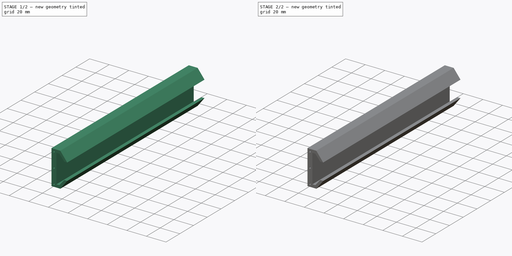
[diagram: build sequence overview — one tinted view per stage of 2, left to right]
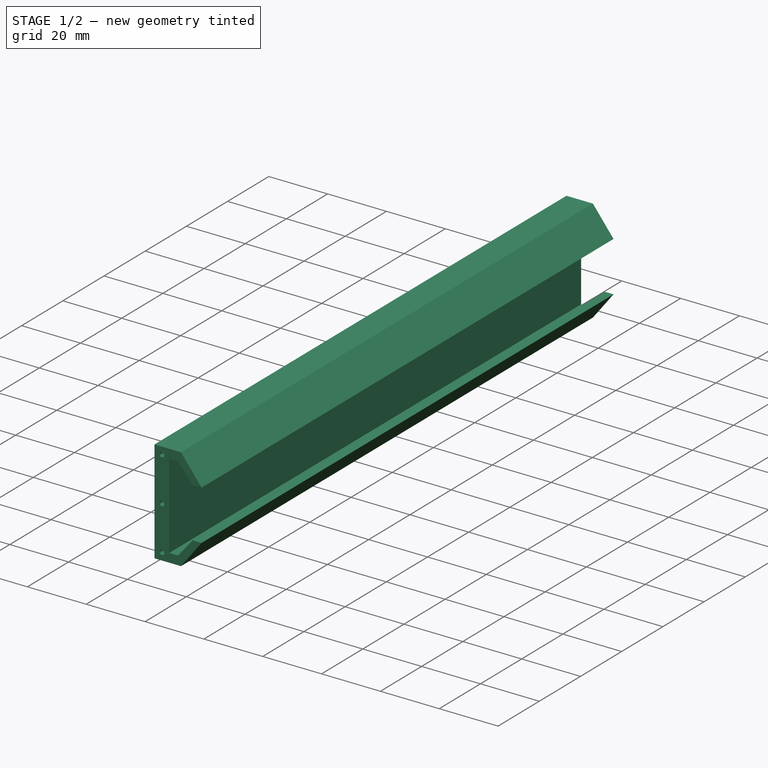
[diagram: stage 1 of 2 — iso view after this stage's code; geometry added in this stage tinted green]
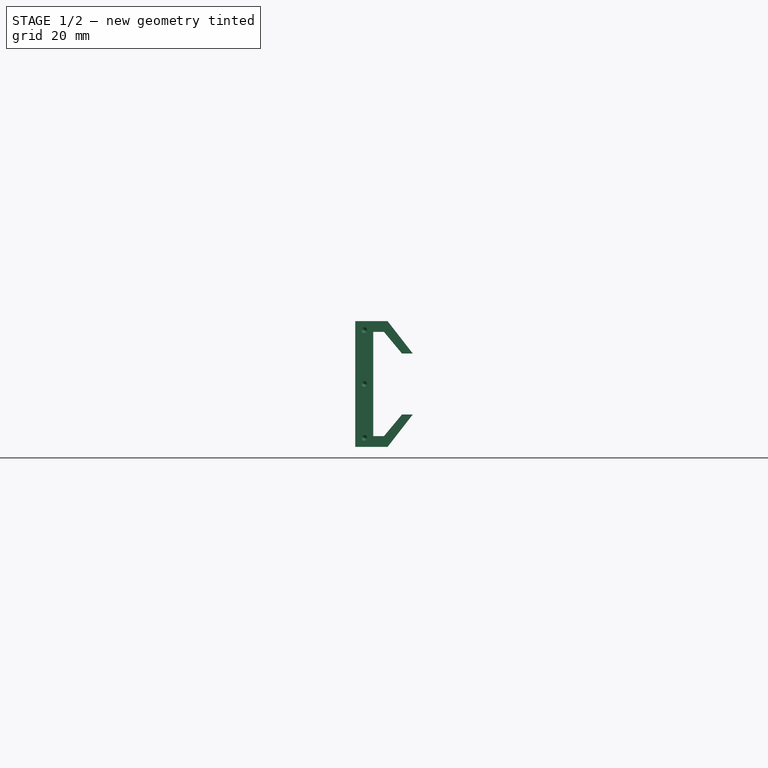
[diagram: stage 1 of 2 — front view after this stage's code; geometry added in this stage tinted green]
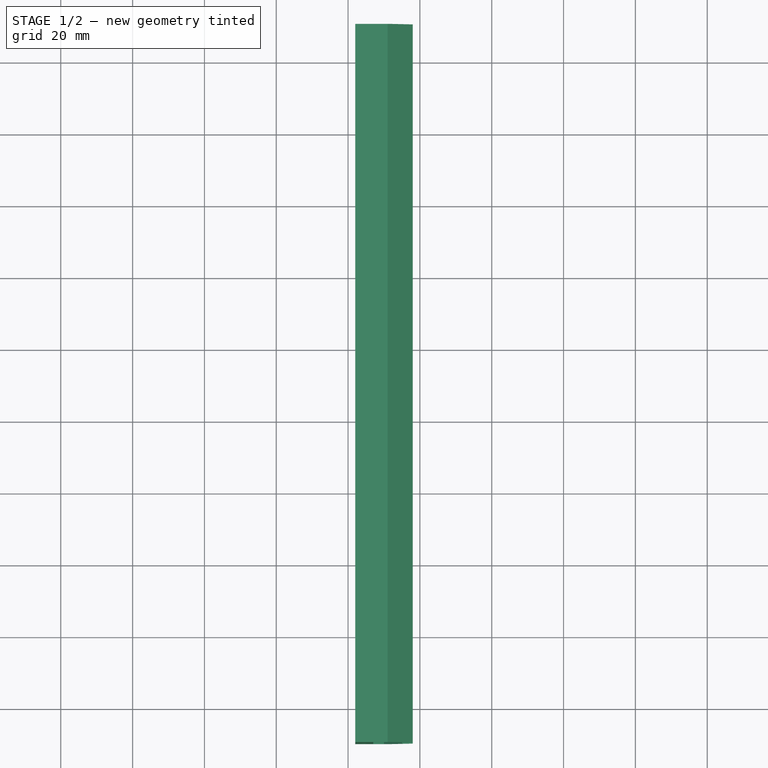
[diagram: stage 1 of 2 — top view after this stage's code; geometry added in this stage tinted green]
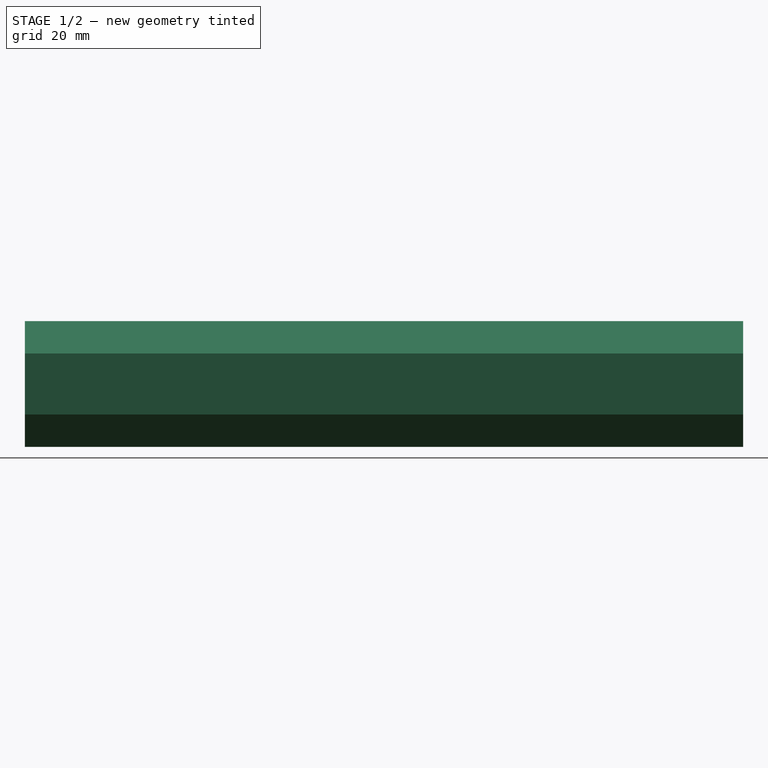
[diagram: stage 1 of 2 — right view after this stage's code; geometry added in this stage tinted green]
FCSTD DOCUMENT  (FreeCAD 1.0R39285 (Git))
Label: slider-01
License: All rights reserved
LicenseURL: http://en.wikipedia.org/wiki/All_rights_reserved
objects: Sketcher::SketchObject×3, PartDesign::Hole×2, PartDesign::Pad×1, PartDesign::Body×1, App::Part×1
note: 16 computed .brp shape members not serialized (recipe doc carries the construction recipe); baked Part::Feature solids carry a one-line shape summary decoded from their .brp

FEATURE [Sketcher::SketchObject] Sketch001
  ArcFitTolerance = 1e-06
  FullyConstrained = false
  MakeInternals = false
  MapMode = 45
  Placement = pos=(-8.84591,-9.71239,7.5) rot=(-1,0,0;1.5708rad)
  sketch-geometry (13):
    g0: GeomPoint [constr] X=-3.15409 Y=8.69e-14 Z=0
    g1: LineSegment StartX=3.84591 StartY=-8.5 StartZ=0 EndX=-1.15409 EndY=-14.5 EndZ=0
    g2: LineSegment StartX=-1.15409 StartY=-14.5 StartZ=0 EndX=-4.15409 EndY=-14.5 EndZ=0
    g3: LineSegment StartX=-4.15409 StartY=-14.5 StartZ=0 EndX=-4.15409 EndY=14.5 EndZ=0
    g4: LineSegment StartX=-4.15409 StartY=14.5 StartZ=0 EndX=-1.15409 EndY=14.5 EndZ=0
    g5: LineSegment StartX=-1.15409 StartY=14.5 StartZ=0 EndX=3.84591 EndY=8.5 EndZ=0
    g6: LineSegment StartX=3.84591 StartY=8.5 StartZ=0 EndX=6.84591 EndY=8.5 EndZ=0
    g7: LineSegment StartX=6.84591 StartY=8.5 StartZ=0 EndX=-0.154088 EndY=17.5 EndZ=0
    g8: LineSegment StartX=-0.154088 StartY=17.5 StartZ=0 EndX=-9.15409 EndY=17.5 EndZ=0
    g9: LineSegment StartX=-9.15409 StartY=17.5 StartZ=0 EndX=-9.15409 EndY=-17.5 EndZ=0
    g10: LineSegment StartX=-9.15409 StartY=-17.5 StartZ=0 EndX=-0.154088 EndY=-17.5 EndZ=0
    g11: LineSegment StartX=-0.154088 StartY=-17.5 StartZ=0 EndX=6.84591 EndY=-8.5 EndZ=0
    g12: LineSegment StartX=6.84591 StartY=-8.5 StartZ=0 EndX=3.84591 EndY=-8.5 EndZ=0
  constraints (36):
    c: Coincident(g1,g2)
    c: Horizontal(g2)
    c: Coincident(g2,g3)
    c: Vertical(g3)
    c: Coincident(g3,g4)
    c: Horizontal(g4)
    c: Coincident(g4,g5)
    c: Coincident(g5,g6)
    c: Horizontal(g6)
    c: Coincident(g6,g7)
    c: Coincident(g7,g8)
    c: Horizontal(g8)
    c: Coincident(g8,g9)
    c: Vertical(g9)
    c: Coincident(g9,g10)
    c: Horizontal(g10)
    c: Coincident(g10,g11)
    c: Coincident(g11,g12)
    c: Coincident(g12,g1)
    c: DistanceX(g2,g-5) = 1
    c: DistanceX(g9,g2) = 5
    c: DistanceX(g1,g11) = 3
    c: Horizontal(g12)
    c: Equal(g4,g2)
    c: Equal(g8,g10)
    c: Equal(g7,g11)
    c: Equal(g5,g1)
    c: Equal(g6,g12)
    c: DistanceY(g-7,g3) = 1
    c: DistanceY(g2,g-5) = 1
    c: DistanceY(g-6,g5) = 1
    c: DistanceY(g1,g-3) = 1
    c: DistanceX(g-7,g7) = 1
    c: DistanceX(g1,g-5) = 0
    c: DistanceX(g-3,g1) = 0
    c: DistanceY(g9,g2) = 3
FEATURE [PartDesign::Pad] Pad001
  Direction = (0,1,2e-16)
  Length = 200
  Length2 = 10
  Placement = pos=(-8.84591,-9.71239,7.5) rot=(-1,0,0;1.5708rad)
  Profile = -> Sketch001
  ReferenceAxis = -> Sketch001 [N_Axis]
  Suppressed = false
  Type = 0
FEATURE [Sketcher::SketchObject] Sketch
  ArcFitTolerance = 1e-06
  AttachmentSupport = -> [Pad001]
  ExternalGeometry = -> [Pad001]
  FullyConstrained = true
  MakeInternals = false
  MapMode = 5
  Placement = pos=(-8.84591,-9.71239,7.5) rot=(1,0,0;1.5708rad)
  sketch-geometry (4):
    g0: LineSegment [constr] StartX=-6.65409 StartY=16 StartZ=0 EndX=-6.65409 EndY=-16 EndZ=0
    g1: Circle CenterX=-6.65409 CenterY=-4.868e-13 CenterZ=0 NormalX=0 NormalY=0 NormalZ=1 AngleXU=0 Radius=1
    g2: Circle CenterX=-6.65409 CenterY=15 CenterZ=0 NormalX=0 NormalY=0 NormalZ=1 AngleXU=0 Radius=1
    g3: Circle CenterX=-6.65409 CenterY=-15 CenterZ=0 NormalX=0 NormalY=0 NormalZ=1 AngleXU=0 Radius=1
  constraints (10):
    c: Symmetric(g-3,g-4,g0)
    c: Symmetric(g-3,g-4,g0)
    c: Diameter(g1) = 2
    c: Symmetric(g0,g0,g1)
    c: Diameter(g2) = 2
    c: PointOnObject(g2,g0)
    c: Diameter(g3) = 2
    c: Distance(g2,g1) = 15
    c: Distance(g1,g3) = 15
    c: DistanceY(g3,g1) = 15
FEATURE [PartDesign::Hole] Hole
  BaseFeature = -> Pad001
  CustomThreadClearance = 0
  Depth = 25
  DepthType = 0
  Diameter = 1.6
  DrillForDepth = false
  DrillPoint = 1
  DrillPointAngle = 118
  HoleCutCountersinkAngle = 90
  HoleCutCustomValues = false
  HoleCutDepth = 0
  HoleCutDiameter = 6.1
  HoleCutType = 0
  ModelThread = false
  Placement = pos=(-8.84591,-9.71239,7.5) rot=(-1,0,0;1.5708rad)
  Profile = -> Sketch
  Suppressed = false
  Tapered = false
  TaperedAngle = 90
  ThreadClass = 0
  ThreadDepth = 25
  ThreadDepthType = 0
  ThreadDirection = 0
  ThreadFit = 0
  ThreadSize = 6
  ThreadType = 1
  Threaded = true
  UseCustomThreadClearance = false
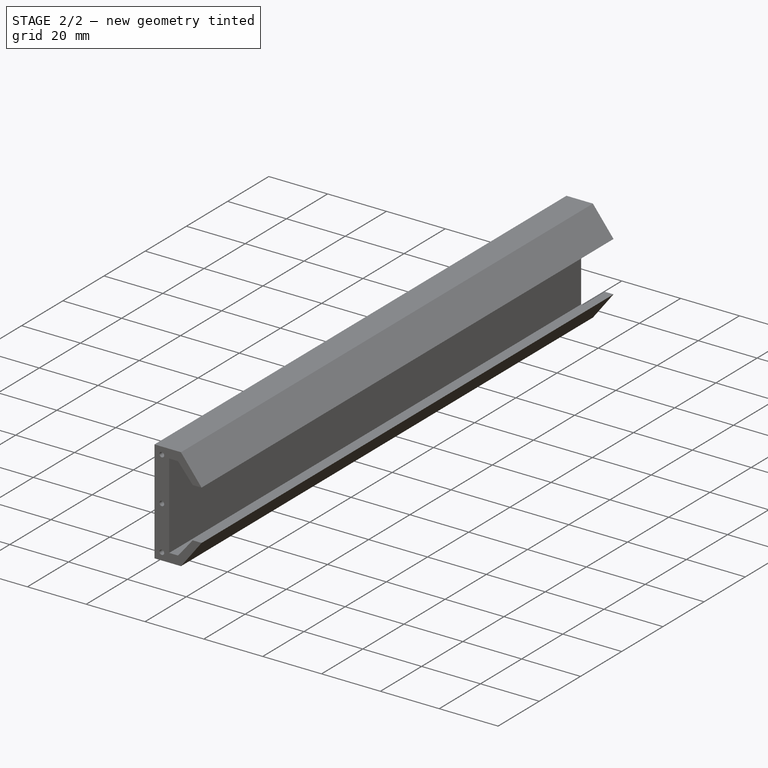
[diagram: stage 2 of 2 — iso view after this stage's code; geometry added in this stage tinted green]
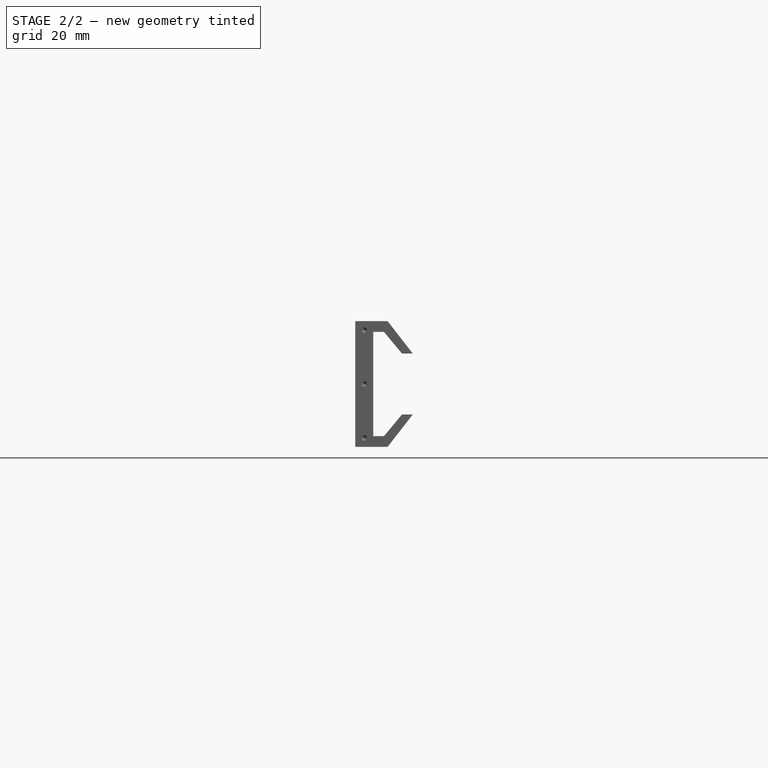
[diagram: stage 2 of 2 — front view after this stage's code; geometry added in this stage tinted green]
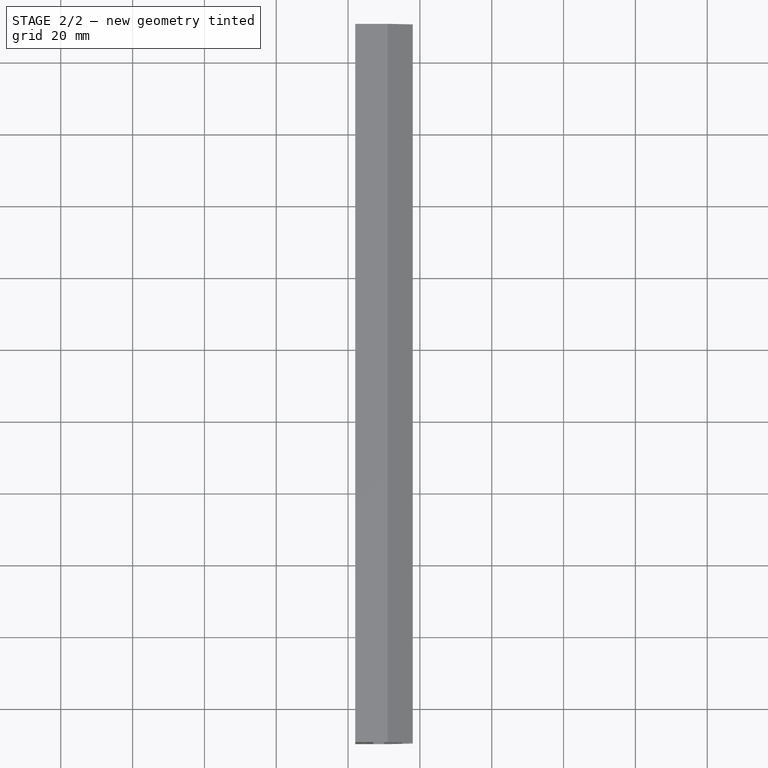
[diagram: stage 2 of 2 — top view after this stage's code; geometry added in this stage tinted green]
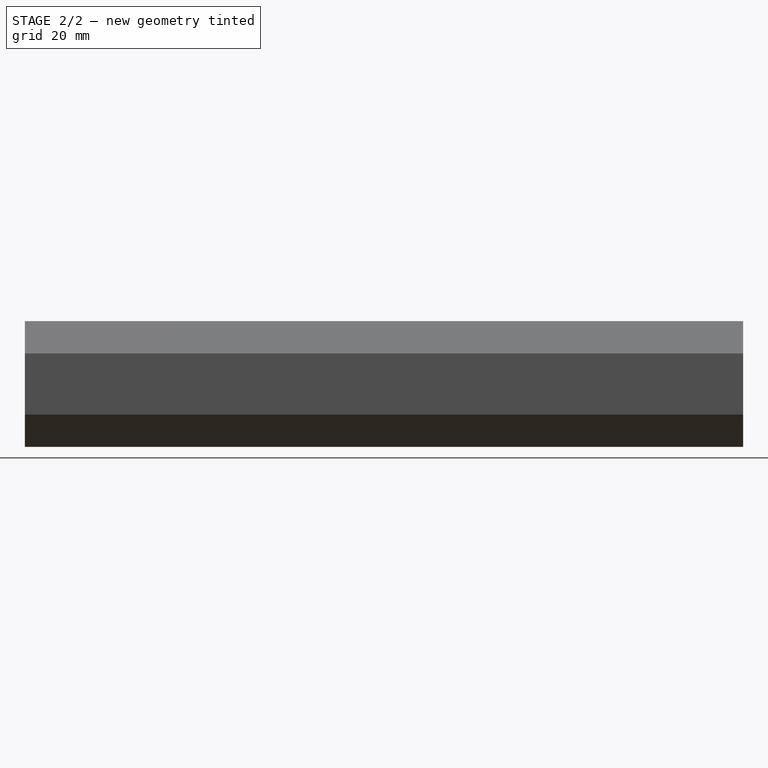
[diagram: stage 2 of 2 — right view after this stage's code; geometry added in this stage tinted green]
FEATURE [Sketcher::SketchObject] Sketch002
  ArcFitTolerance = 1e-06
  AttachmentSupport = -> [Pad001]
  FullyConstrained = true
  MakeInternals = false
  MapMode = 5
  Placement = pos=(-8.84591,190.288,7.5) rot=(-1,0,0;1.5708rad)
  sketch-geometry (4):
    g0: LineSegment [constr] StartX=-6.65409 StartY=16 StartZ=0 EndX=-6.65409 EndY=-16 EndZ=0
    g1: Circle CenterX=-6.65409 CenterY=-4.868e-13 CenterZ=0 NormalX=0 NormalY=0 NormalZ=1 AngleXU=0 Radius=1
    g2: Circle CenterX=-6.65409 CenterY=15 CenterZ=0 NormalX=0 NormalY=0 NormalZ=1 AngleXU=0 Radius=1
    g3: Circle CenterX=-6.65409 CenterY=-15 CenterZ=0 NormalX=0 NormalY=0 NormalZ=1 AngleXU=0 Radius=1
  constraints (10):
    c: Symmetric(g-3,g-4,g0)
    c: Symmetric(g-3,g-4,g0)
    c: Diameter(g1) = 2
    c: Symmetric(g0,g0,g1)
    c: Diameter(g2) = 2
    c: PointOnObject(g2,g0)
    c: Diameter(g3) = 2
    c: Distance(g2,g1) = 15
    c: Distance(g1,g3) = 15
    c: DistanceY(g3,g1) = 15
FEATURE [PartDesign::Hole] Hole001
  BaseFeature = -> Hole
  CustomThreadClearance = 0
  Depth = 25
  DepthType = 0
  Diameter = 1.6
  DrillForDepth = false
  DrillPoint = 1
  DrillPointAngle = 118
  HoleCutCountersinkAngle = 90
  HoleCutCustomValues = false
  HoleCutDepth = 0
  HoleCutDiameter = 6.1
  HoleCutType = 0
  ModelThread = false
  Placement = pos=(-8.84591,-9.71239,7.5) rot=(-1,0,0;1.5708rad)
  Profile = -> Sketch002
  Suppressed = false
  Tapered = false
  TaperedAngle = 90
  ThreadClass = 0
  ThreadDepth = 25
  ThreadDepthType = 0
  ThreadDirection = 0
  ThreadFit = 0
  ThreadSize = 6
  ThreadType = 1
  Threaded = true
  UseCustomThreadClearance = false
FEATURE [PartDesign::Body] Body
  AllowCompound = false
  Group = -> [Sketch001,Pad001,Sketch,Hole,Sketch002,Hole001]
  Origin = -> Origin001
  Tip = -> Hole001
FEATURE [App::Part] Part
  Group = -> [Body]
  Origin = -> Origin
  Placement = pos=(0,0,0) rot=(0,1,0;-1.5708rad)
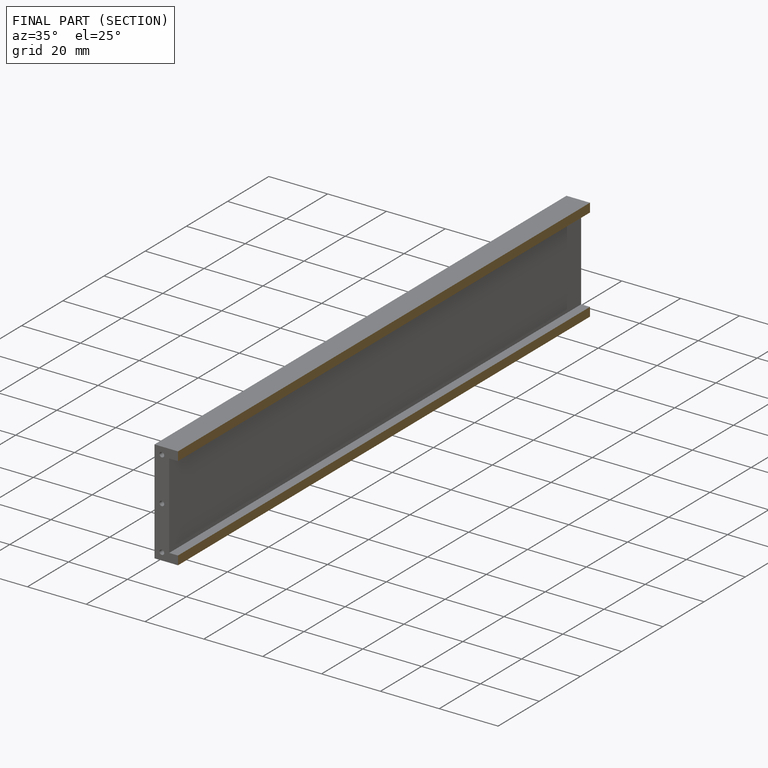
[diagram: finished part — half-section view (interior)]
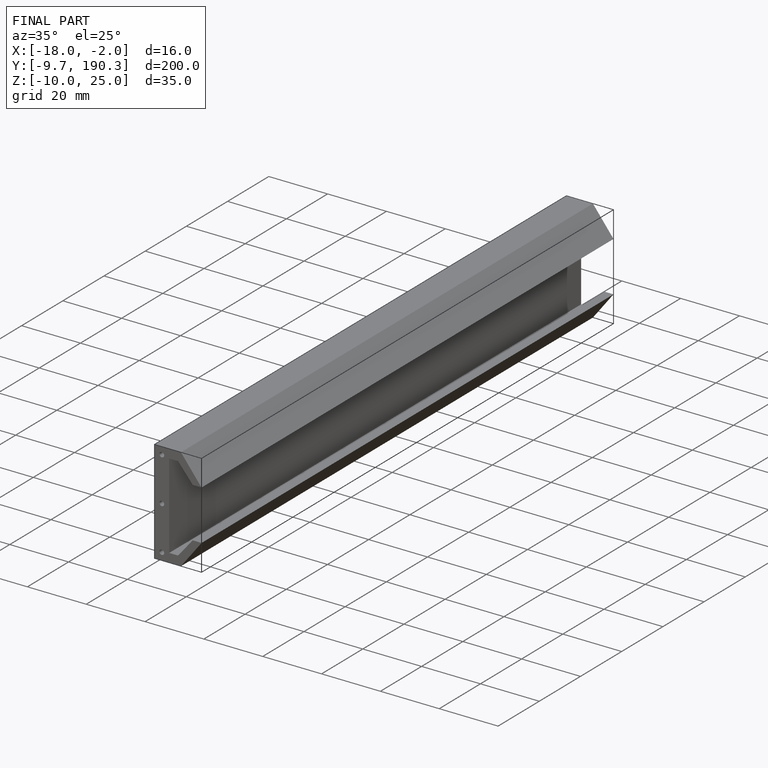
[diagram: finished part — iso view with bounding-box wireframe]
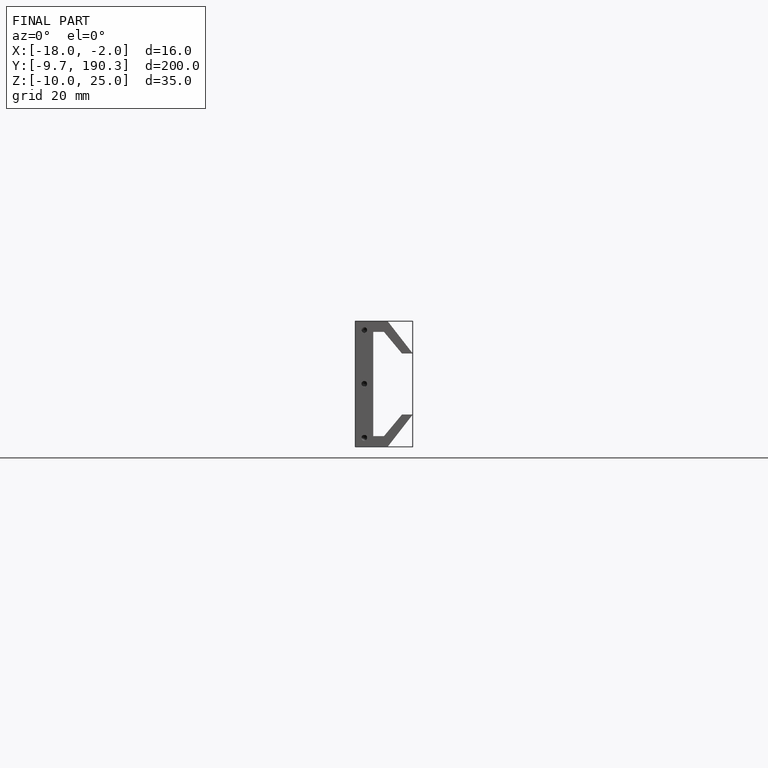
[diagram: finished part — front view with bounding-box wireframe]
